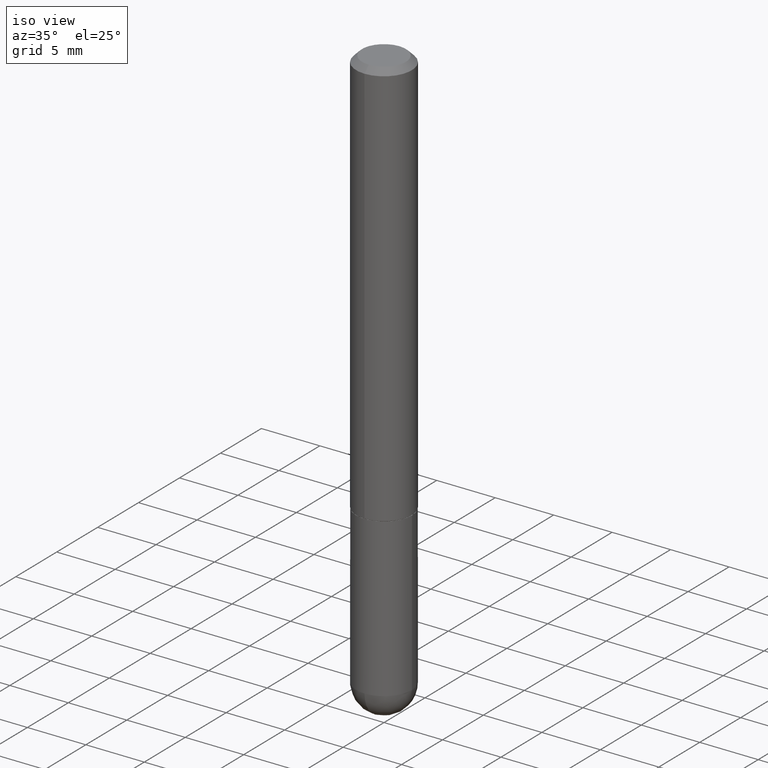
[diagram: clean part render]
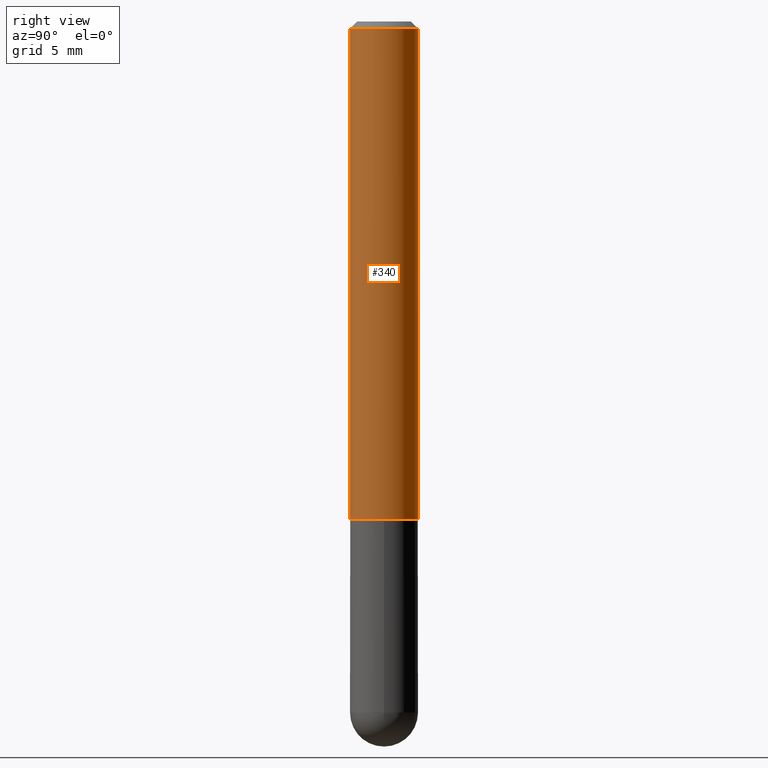
[diagram: tour spotlight — one face highlighted and labeled with its STEP entity id]
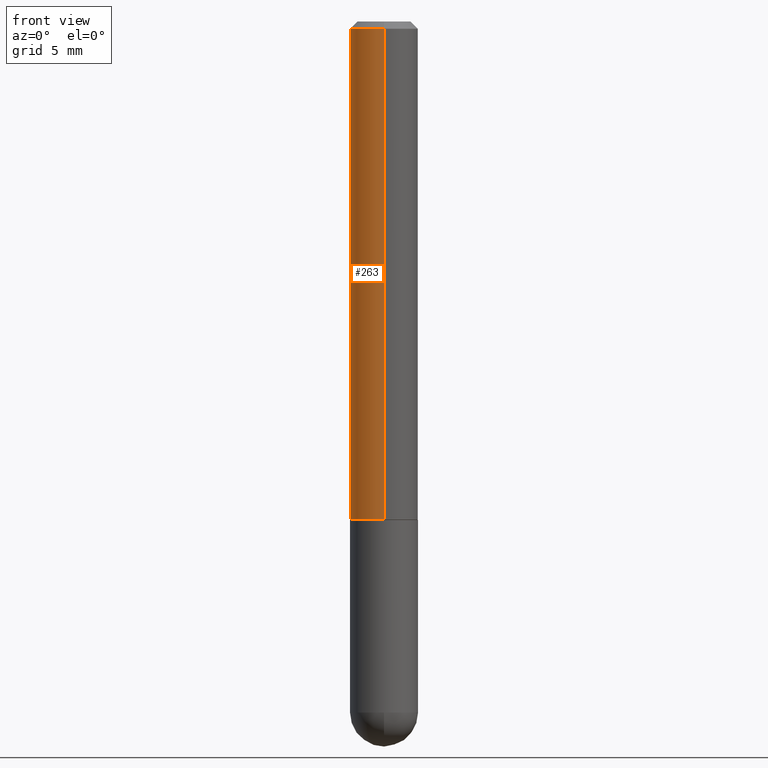
[diagram: tour spotlight — one face highlighted and labeled with its STEP entity id]
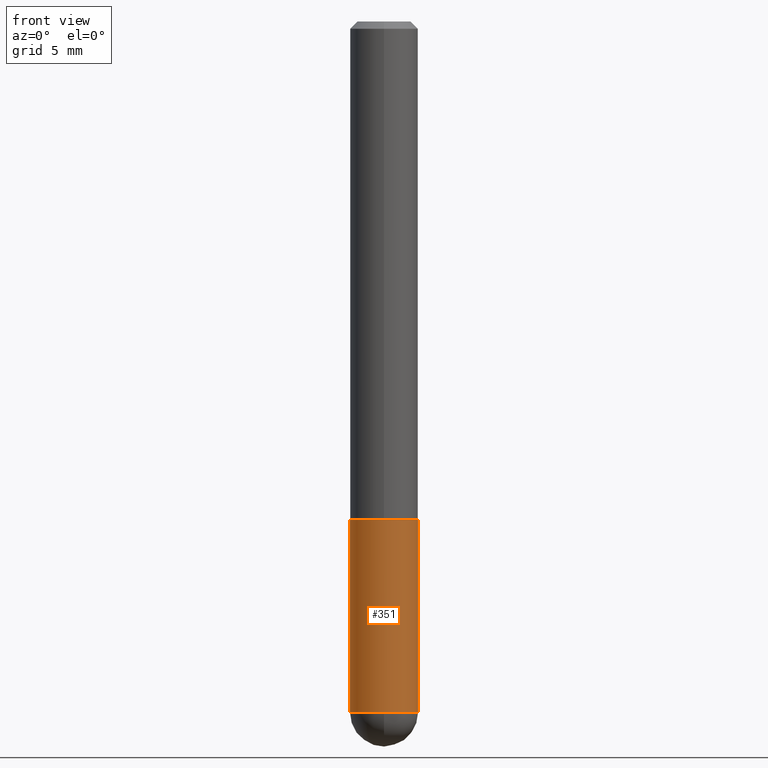
[diagram: tour spotlight — one face highlighted and labeled with its STEP entity id]
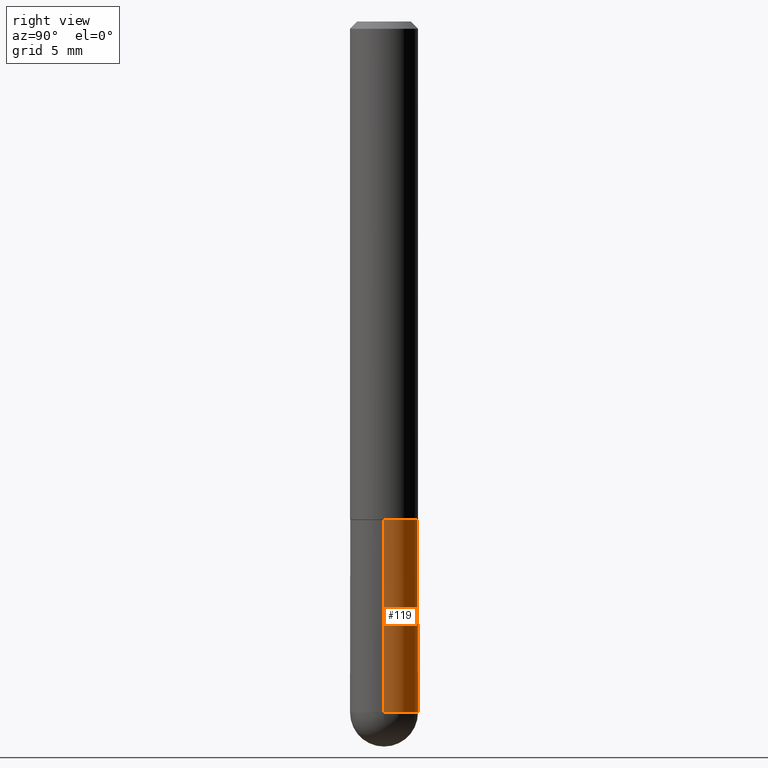
[diagram: tour spotlight — one face highlighted and labeled with its STEP entity id]
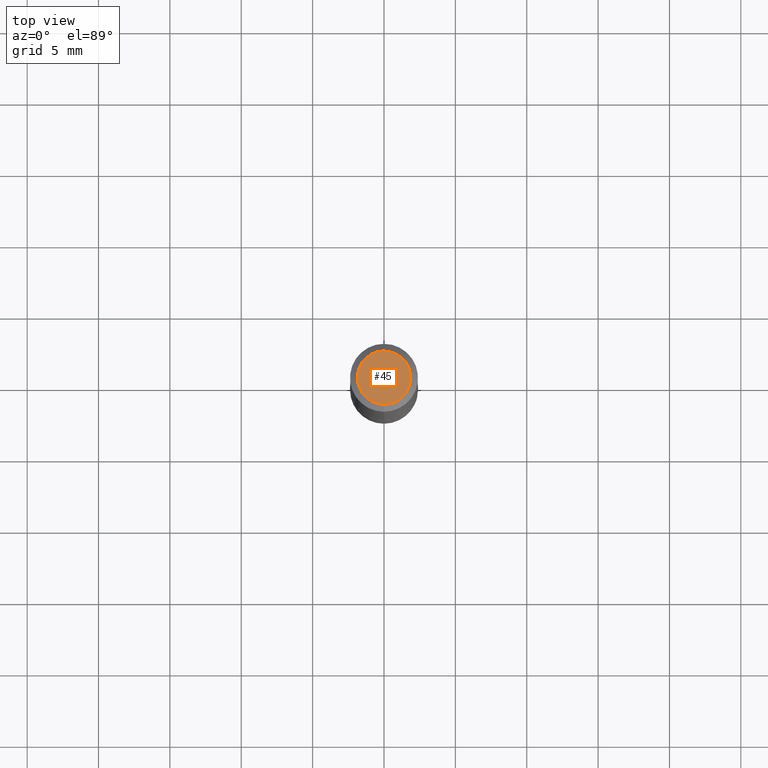
[diagram: tour spotlight — one face highlighted and labeled with its STEP entity id]
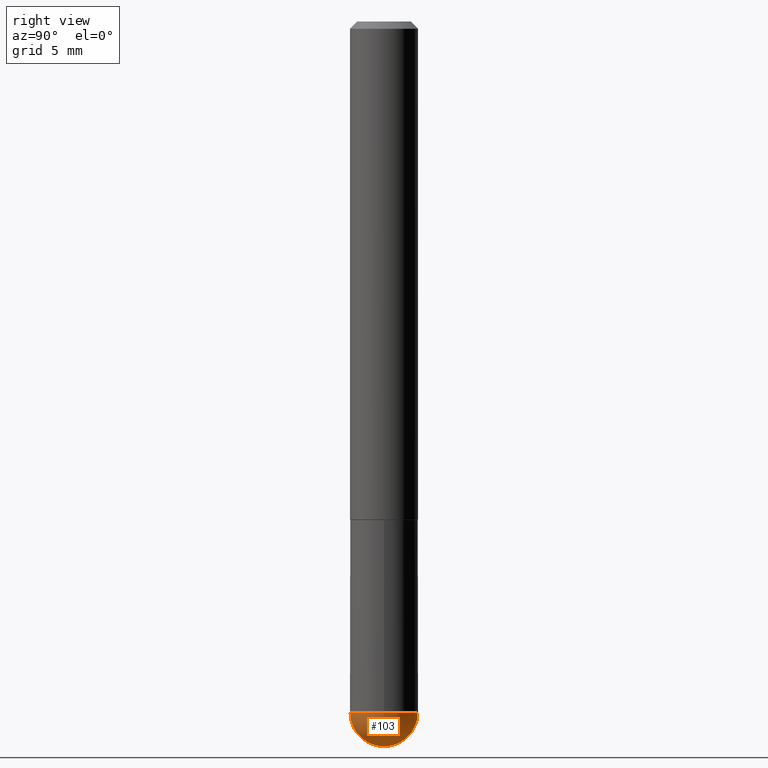
[diagram: tour spotlight — one face highlighted and labeled with its STEP entity id]
A machine part: a face-by-face anatomy tour. The part has 13 B-rep faces; the first image is the clean iso view, then the 6 largest visible faces are spotlighted one at a time (largest first), each with its STEP entity span.

Face 1 — right view, entity #340. In plain terms, the highlighted cylindrical surface (edge-blend (fillet) strip) has radius 2.3813 mm, axis along (-0, 0, 1).
Definition (entity closure, byte-faithful):
#14 = VERTEX_POINT ( 'NONE', #209 ) ;
#16 = VERTEX_POINT ( 'NONE', #364 ) ;
#18 = EDGE_CURVE ( 'NONE', #372, #16, #88, .T. ) ;
#23 = ORIENTED_EDGE ( 'NONE', *, *, #18, .T. ) ;
#25 = DIRECTION ( 'NONE',  ( -2.444815812930196646E-29, 3.492416462350287517E-15, 1.000000000000000000 ) ) ;
#28 = DIRECTION ( 'NONE',  ( -6.982962677686265922E-15, -1.000000000000000000, 3.492416462350287517E-15 ) ) ;
#43 = ORIENTED_EDGE ( 'NONE', *, *, #270, .F. ) ;
#55 = CYLINDRICAL_SURFACE ( 'NONE', #235, 0.09375000000000009714 ) ;
#88 = CIRCLE ( 'NONE', #397, 0.09375000000000018041 ) ;
#104 = CARTESIAN_POINT ( 'NONE',  ( -6.546527510330880958E-16, -0.09375000000000009714, 3.274140433453397875E-16 ) ) ;
#109 = EDGE_CURVE ( 'NONE', #14, #368, #375, .T. ) ;
#140 = EDGE_LOOP ( 'NONE', ( #23, #311, #395, #43 ) ) ;
#142 = VECTOR ( 'NONE', #25, 39.37007874015748143 ) ;
#177 = DIRECTION ( 'NONE',  ( -2.444815812930196646E-29, 3.492416462350287517E-15, 1.000000000000000000 ) ) ;
#188 = LINE ( 'NONE', #314, #142 ) ;
#191 = CARTESIAN_POINT ( 'NONE',  ( 0.000000000000000000, 0.000000000000000000, 0.000000000000000000 ) ) ;
#209 = CARTESIAN_POINT ( 'NONE',  ( -6.431716872910804923E-16, -0.09375000000000005551, -0.01999999999999968817 ) ) ;
#224 = FACE_OUTER_BOUND ( 'NONE', #140, .T. ) ;
#229 = AXIS2_PLACEMENT_3D ( 'NONE', #231, #356, #236 ) ;
#231 = CARTESIAN_POINT ( 'NONE',  ( 4.889631625860397600E-31, -6.984832924700581049E-17, -0.02000000000000001776 ) ) ;
#235 = AXIS2_PLACEMENT_3D ( 'NONE', #191, #246, #28 ) ;
#236 = DIRECTION ( 'NONE',  ( -6.982962677686266711E-15, -1.000000000000000000, 3.505871591869138487E-15 ) ) ;
#238 = VECTOR ( 'NONE', #177, 39.37007874015748143 ) ;
#246 = DIRECTION ( 'NONE',  ( -2.444815812930196646E-29, 3.492416462350287517E-15, 1.000000000000000000 ) ) ;
#256 = CARTESIAN_POINT ( 'NONE',  ( -6.546527510330551608E-16, -0.09375000000000498213, -1.373999999999999666 ) ) ;
#270 = EDGE_CURVE ( 'NONE', #372, #14, #387, .T. ) ;
#311 = ORIENTED_EDGE ( 'NONE', *, *, #328, .T. ) ;
#314 = CARTESIAN_POINT ( 'NONE',  ( 6.661338147750944173E-16, 0.09375000000000009714, -3.274140433453397875E-16 ) ) ;
#327 = DIRECTION ( 'NONE',  ( -6.982962677686265922E-15, -1.000000000000000000, 2.913971193241875244E-15 ) ) ;
#328 = EDGE_CURVE ( 'NONE', #16, #368, #188, .T. ) ;
#330 = DIRECTION ( 'NONE',  ( -2.444815812930196646E-29, 3.492416462350287517E-15, 1.000000000000000000 ) ) ;
#340 = ADVANCED_FACE ( 'NONE', ( #224 ), #55, .T. ) ;
#343 = CARTESIAN_POINT ( 'NONE',  ( 6.546527510330878985E-16, 0.09374999999999991673, -0.02000000000000034736 ) ) ;
#356 = DIRECTION ( 'NONE',  ( -2.444815812930196646E-29, 3.492416462350287517E-15, 1.000000000000000000 ) ) ;
#364 = CARTESIAN_POINT ( 'NONE',  ( 6.661338147751117722E-16, 0.09374999999999537870, -1.374000000000000110 ) ) ;
#368 = VERTEX_POINT ( 'NONE', #343 ) ;
#372 = VERTEX_POINT ( 'NONE', #256 ) ;
#375 = CIRCLE ( 'NONE', #229, 0.09374999999999998612 ) ;
#387 = LINE ( 'NONE', #104, #238 ) ;
#393 = CARTESIAN_POINT ( 'NONE',  ( 3.359176926966090099E-29, -4.798580219269294637E-15, -1.373999999999999888 ) ) ;
#395 = ORIENTED_EDGE ( 'NONE', *, *, #109, .F. ) ;
#397 = AXIS2_PLACEMENT_3D ( 'NONE', #393, #330, #327 ) ;

Face 2 — front view, entity #263. In plain terms, the highlighted cylindrical surface (edge-blend (fillet) strip) has radius 2.3813 mm, axis along (-0, 0, 1).
Definition (entity closure, byte-faithful):
#8 = CARTESIAN_POINT ( 'NONE',  ( 0.000000000000000000, 0.000000000000000000, 0.000000000000000000 ) ) ;
#14 = VERTEX_POINT ( 'NONE', #209 ) ;
#16 = VERTEX_POINT ( 'NONE', #364 ) ;
#25 = DIRECTION ( 'NONE',  ( -2.444815812930196646E-29, 3.492416462350287517E-15, 1.000000000000000000 ) ) ;
#26 = EDGE_CURVE ( 'NONE', #16, #372, #331, .T. ) ;
#31 = EDGE_CURVE ( 'NONE', #368, #14, #69, .T. ) ;
#40 = DIRECTION ( 'NONE',  ( -2.444815812930196646E-29, 3.492416462350287517E-15, 1.000000000000000000 ) ) ;
#69 = CIRCLE ( 'NONE', #365, 0.09374999999999998612 ) ;
#80 = EDGE_LOOP ( 'NONE', ( #136, #390, #276, #335 ) ) ;
#104 = CARTESIAN_POINT ( 'NONE',  ( -6.546527510330880958E-16, -0.09375000000000009714, 3.274140433453397875E-16 ) ) ;
#131 = DIRECTION ( 'NONE',  ( -2.444815812930196646E-29, 3.492416462350287517E-15, 1.000000000000000000 ) ) ;
#136 = ORIENTED_EDGE ( 'NONE', *, *, #328, .F. ) ;
#139 = CARTESIAN_POINT ( 'NONE',  ( 3.359176926966090099E-29, -4.798580219269294637E-15, -1.373999999999999888 ) ) ;
#142 = VECTOR ( 'NONE', #25, 39.37007874015748143 ) ;
#168 = FACE_OUTER_BOUND ( 'NONE', #80, .T. ) ;
#170 = DIRECTION ( 'NONE',  ( -6.982962677686266711E-15, -1.000000000000000000, 3.505871591869138487E-15 ) ) ;
#177 = DIRECTION ( 'NONE',  ( -2.444815812930196646E-29, 3.492416462350287517E-15, 1.000000000000000000 ) ) ;
#180 = DIRECTION ( 'NONE',  ( -2.444815812930196646E-29, 3.492416462350287517E-15, 1.000000000000000000 ) ) ;
#185 = AXIS2_PLACEMENT_3D ( 'NONE', #139, #40, #277 ) ;
#188 = LINE ( 'NONE', #314, #142 ) ;
#209 = CARTESIAN_POINT ( 'NONE',  ( -6.431716872910804923E-16, -0.09375000000000005551, -0.01999999999999968817 ) ) ;
#238 = VECTOR ( 'NONE', #177, 39.37007874015748143 ) ;
#256 = CARTESIAN_POINT ( 'NONE',  ( -6.546527510330551608E-16, -0.09375000000000498213, -1.373999999999999666 ) ) ;
#263 = ADVANCED_FACE ( 'NONE', ( #168 ), #297, .T. ) ;
#269 = DIRECTION ( 'NONE',  ( -6.982962677686265922E-15, -1.000000000000000000, 3.492416462350287517E-15 ) ) ;
#270 = EDGE_CURVE ( 'NONE', #372, #14, #387, .T. ) ;
#276 = ORIENTED_EDGE ( 'NONE', *, *, #270, .T. ) ;
#277 = DIRECTION ( 'NONE',  ( -6.982962677686265922E-15, -1.000000000000000000, 2.913971193241875244E-15 ) ) ;
#297 = CYLINDRICAL_SURFACE ( 'NONE', #353, 0.09375000000000009714 ) ;
#314 = CARTESIAN_POINT ( 'NONE',  ( 6.661338147750944173E-16, 0.09375000000000009714, -3.274140433453397875E-16 ) ) ;
#328 = EDGE_CURVE ( 'NONE', #16, #368, #188, .T. ) ;
#331 = CIRCLE ( 'NONE', #185, 0.09375000000000018041 ) ;
#335 = ORIENTED_EDGE ( 'NONE', *, *, #31, .F. ) ;
#343 = CARTESIAN_POINT ( 'NONE',  ( 6.546527510330878985E-16, 0.09374999999999991673, -0.02000000000000034736 ) ) ;
#353 = AXIS2_PLACEMENT_3D ( 'NONE', #8, #131, #269 ) ;
#364 = CARTESIAN_POINT ( 'NONE',  ( 6.661338147751117722E-16, 0.09374999999999537870, -1.374000000000000110 ) ) ;
#365 = AXIS2_PLACEMENT_3D ( 'NONE', #396, #180, #170 ) ;
#368 = VERTEX_POINT ( 'NONE', #343 ) ;
#372 = VERTEX_POINT ( 'NONE', #256 ) ;
#387 = LINE ( 'NONE', #104, #238 ) ;
#390 = ORIENTED_EDGE ( 'NONE', *, *, #26, .T. ) ;
#396 = CARTESIAN_POINT ( 'NONE',  ( 4.889631625860397600E-31, -6.984832924700581049E-17, -0.02000000000000001776 ) ) ;

Face 3 — front view, entity #351. In plain terms, the highlighted cylindrical surface (edge-blend (fillet) strip) has radius 2.3812 mm, axis along (-0, 0, 1).
Definition (entity closure, byte-faithful):
#4 = CARTESIAN_POINT ( 'NONE',  ( -6.661338147750496494E-16, -0.09375000000000702216, -1.906249999999999556 ) ) ;
#19 = FACE_OUTER_BOUND ( 'NONE', #284, .T. ) ;
#20 = VERTEX_POINT ( 'NONE', #213 ) ;
#37 = EDGE_CURVE ( 'NONE', #145, #20, #89, .T. ) ;
#53 = CARTESIAN_POINT ( 'NONE',  ( 0.09374999999999998612, -6.546527510330874055E-16, 4.571415727308689105E-30 ) ) ;
#62 = VECTOR ( 'NONE', #399, 39.37007874015748143 ) ;
#72 = VERTEX_POINT ( 'NONE', #255 ) ;
#81 = DIRECTION ( 'NONE',  ( -2.445468806185136877E-29, 3.491481338843145188E-15, 1.000000000000000000 ) ) ;
#89 = CIRCLE ( 'NONE', #293, 0.09374999999999998612 ) ;
#99 = AXIS2_PLACEMENT_3D ( 'NONE', #226, #346, #316 ) ;
#105 = VERTEX_POINT ( 'NONE', #128 ) ;
#115 = CYLINDRICAL_SURFACE ( 'NONE', #99, 0.09374999999999998612 ) ;
#122 = AXIS2_PLACEMENT_3D ( 'NONE', #200, #412, #355 ) ;
#128 = CARTESIAN_POINT ( 'NONE',  ( -0.09374999999999998612, -5.062077756764441261E-15, -1.906250000000000000 ) ) ;
#135 = DIRECTION ( 'NONE',  ( 1.000000000000000000, -6.982962677686263555E-15, 0.000000000000000000 ) ) ;
#137 = CARTESIAN_POINT ( 'NONE',  ( -0.09374999999999998612, 6.661338147750938256E-16, -4.611501647113973295E-30 ) ) ;
#145 = VERTEX_POINT ( 'NONE', #4 ) ;
#149 = LINE ( 'NONE', #137, #398 ) ;
#169 = ORIENTED_EDGE ( 'NONE', *, *, #347, .F. ) ;
#178 = ORIENTED_EDGE ( 'NONE', *, *, #37, .T. ) ;
#183 = ORIENTED_EDGE ( 'NONE', *, *, #318, .T. ) ;
#200 = CARTESIAN_POINT ( 'NONE',  ( 3.362519608504562260E-29, -4.800786840909324930E-15, -1.375000000000000000 ) ) ;
#213 = CARTESIAN_POINT ( 'NONE',  ( 0.09374999999999998612, -6.382864322572621901E-15, -1.906250000000000000 ) ) ;
#218 = DIRECTION ( 'NONE',  ( -2.445468806185136597E-29, 3.491481338843145583E-15, 1.000000000000000000 ) ) ;
#226 = CARTESIAN_POINT ( 'NONE',  ( 0.000000000000000000, 0.000000000000000000, 0.000000000000000000 ) ) ;
#230 = EDGE_CURVE ( 'NONE', #72, #251, #257, .T. ) ;
#251 = VERTEX_POINT ( 'NONE', #268 ) ;
#255 = CARTESIAN_POINT ( 'NONE',  ( -0.09375000000000001388, -5.062077756764441261E-15, -1.375000000000000000 ) ) ;
#257 = CIRCLE ( 'NONE', #122, 0.09375000000000001388 ) ;
#268 = CARTESIAN_POINT ( 'NONE',  ( 0.09375000000000001388, -5.455439591942412434E-15, -1.375000000000000000 ) ) ;
#284 = EDGE_LOOP ( 'NONE', ( #169, #402, #178, #183, #305 ) ) ;
#293 = AXIS2_PLACEMENT_3D ( 'NONE', #309, #301, #135 ) ;
#298 = EDGE_CURVE ( 'NONE', #105, #145, #389, .T. ) ;
#301 = DIRECTION ( 'NONE',  ( -2.445468806185136597E-29, 3.491481338843145583E-15, 1.000000000000000000 ) ) ;
#305 = ORIENTED_EDGE ( 'NONE', *, *, #230, .F. ) ;
#309 = CARTESIAN_POINT ( 'NONE',  ( 4.661674911790416638E-29, -6.655636302169745441E-15, -1.906250000000000000 ) ) ;
#316 = DIRECTION ( 'NONE',  ( 1.000000000000000000, -6.982962677686266711E-15, 4.876176775795935793E-29 ) ) ;
#317 = AXIS2_PLACEMENT_3D ( 'NONE', #341, #218, #366 ) ;
#318 = EDGE_CURVE ( 'NONE', #20, #251, #336, .T. ) ;
#336 = LINE ( 'NONE', #53, #62 ) ;
#341 = CARTESIAN_POINT ( 'NONE',  ( 4.661674911790416638E-29, -6.655636302169745441E-15, -1.906250000000000000 ) ) ;
#346 = DIRECTION ( 'NONE',  ( -2.445468806185136597E-29, 3.491481338843145583E-15, 1.000000000000000000 ) ) ;
#347 = EDGE_CURVE ( 'NONE', #105, #72, #149, .T. ) ;
#351 = ADVANCED_FACE ( 'NONE', ( #19 ), #115, .T. ) ;
#355 = DIRECTION ( 'NONE',  ( 1.000000000000000000, -6.982962677686261189E-15, 0.000000000000000000 ) ) ;
#366 = DIRECTION ( 'NONE',  ( 1.000000000000000000, -6.982962677686263555E-15, 0.000000000000000000 ) ) ;
#389 = CIRCLE ( 'NONE', #317, 0.09374999999999998612 ) ;
#398 = VECTOR ( 'NONE', #81, 39.37007874015748143 ) ;
#399 = DIRECTION ( 'NONE',  ( -2.445468806185136877E-29, 3.491481338843145188E-15, 1.000000000000000000 ) ) ;
#402 = ORIENTED_EDGE ( 'NONE', *, *, #298, .T. ) ;
#412 = DIRECTION ( 'NONE',  ( -2.445468806185136597E-29, 3.491481338843145583E-15, 1.000000000000000000 ) ) ;

Face 4 — right view, entity #119. In plain terms, the highlighted cylindrical surface (edge-blend (fillet) strip) has radius 2.3812 mm, axis along (-0, 0, 1).
Definition (entity closure, byte-faithful):
#17 = ORIENTED_EDGE ( 'NONE', *, *, #96, .T. ) ;
#20 = VERTEX_POINT ( 'NONE', #213 ) ;
#22 = AXIS2_PLACEMENT_3D ( 'NONE', #67, #325, #158 ) ;
#53 = CARTESIAN_POINT ( 'NONE',  ( 0.09374999999999998612, -6.546527510330874055E-16, 4.571415727308689105E-30 ) ) ;
#58 = CIRCLE ( 'NONE', #319, 0.09374999999999998612 ) ;
#62 = VECTOR ( 'NONE', #399, 39.37007874015748143 ) ;
#67 = CARTESIAN_POINT ( 'NONE',  ( 0.000000000000000000, 0.000000000000000000, 0.000000000000000000 ) ) ;
#72 = VERTEX_POINT ( 'NONE', #255 ) ;
#73 = ORIENTED_EDGE ( 'NONE', *, *, #347, .T. ) ;
#74 = ORIENTED_EDGE ( 'NONE', *, *, #386, .T. ) ;
#81 = DIRECTION ( 'NONE',  ( -2.445468806185136877E-29, 3.491481338843145188E-15, 1.000000000000000000 ) ) ;
#95 = CIRCLE ( 'NONE', #260, 0.09375000000000001388 ) ;
#96 = EDGE_CURVE ( 'NONE', #279, #105, #58, .T. ) ;
#102 = DIRECTION ( 'NONE',  ( -2.445468806185136597E-29, 3.491481338843145583E-15, 1.000000000000000000 ) ) ;
#105 = VERTEX_POINT ( 'NONE', #128 ) ;
#107 = DIRECTION ( 'NONE',  ( 1.000000000000000000, -6.982962677686263555E-15, 0.000000000000000000 ) ) ;
#119 = ADVANCED_FACE ( 'NONE', ( #296 ), #321, .T. ) ;
#128 = CARTESIAN_POINT ( 'NONE',  ( -0.09374999999999998612, -5.062077756764441261E-15, -1.906250000000000000 ) ) ;
#137 = CARTESIAN_POINT ( 'NONE',  ( -0.09374999999999998612, 6.661338147750938256E-16, -4.611501647113973295E-30 ) ) ;
#144 = EDGE_CURVE ( 'NONE', #251, #72, #95, .T. ) ;
#149 = LINE ( 'NONE', #137, #398 ) ;
#158 = DIRECTION ( 'NONE',  ( 1.000000000000000000, -6.982962677686266711E-15, 4.876176775795935793E-29 ) ) ;
#176 = CARTESIAN_POINT ( 'NONE',  ( 4.661674911790416638E-29, -6.655636302169745441E-15, -1.906250000000000000 ) ) ;
#213 = CARTESIAN_POINT ( 'NONE',  ( 0.09374999999999998612, -6.382864322572621901E-15, -1.906250000000000000 ) ) ;
#222 = CARTESIAN_POINT ( 'NONE',  ( 4.661674911790416638E-29, -6.655636302169745441E-15, -1.906250000000000000 ) ) ;
#248 = CIRCLE ( 'NONE', #379, 0.09374999999999998612 ) ;
#251 = VERTEX_POINT ( 'NONE', #268 ) ;
#255 = CARTESIAN_POINT ( 'NONE',  ( -0.09375000000000001388, -5.062077756764441261E-15, -1.375000000000000000 ) ) ;
#260 = AXIS2_PLACEMENT_3D ( 'NONE', #352, #102, #322 ) ;
#268 = CARTESIAN_POINT ( 'NONE',  ( 0.09375000000000001388, -5.455439591942412434E-15, -1.375000000000000000 ) ) ;
#279 = VERTEX_POINT ( 'NONE', #282 ) ;
#282 = CARTESIAN_POINT ( 'NONE',  ( 6.546527510331332580E-16, 0.09374999999999322764, -1.906250000000000222 ) ) ;
#288 = DIRECTION ( 'NONE',  ( 1.000000000000000000, -6.982962677686263555E-15, 0.000000000000000000 ) ) ;
#296 = FACE_OUTER_BOUND ( 'NONE', #308, .T. ) ;
#307 = DIRECTION ( 'NONE',  ( -2.445468806185136597E-29, 3.491481338843145583E-15, 1.000000000000000000 ) ) ;
#308 = EDGE_LOOP ( 'NONE', ( #17, #73, #369, #332, #74 ) ) ;
#318 = EDGE_CURVE ( 'NONE', #20, #251, #336, .T. ) ;
#319 = AXIS2_PLACEMENT_3D ( 'NONE', #176, #307, #107 ) ;
#321 = CYLINDRICAL_SURFACE ( 'NONE', #22, 0.09374999999999998612 ) ;
#322 = DIRECTION ( 'NONE',  ( 1.000000000000000000, -6.982962677686261189E-15, 0.000000000000000000 ) ) ;
#325 = DIRECTION ( 'NONE',  ( -2.445468806185136597E-29, 3.491481338843145583E-15, 1.000000000000000000 ) ) ;
#332 = ORIENTED_EDGE ( 'NONE', *, *, #318, .F. ) ;
#336 = LINE ( 'NONE', #53, #62 ) ;
#338 = DIRECTION ( 'NONE',  ( -2.445468806185136597E-29, 3.491481338843145583E-15, 1.000000000000000000 ) ) ;
#347 = EDGE_CURVE ( 'NONE', #105, #72, #149, .T. ) ;
#352 = CARTESIAN_POINT ( 'NONE',  ( 3.362519608504562260E-29, -4.800786840909324930E-15, -1.375000000000000000 ) ) ;
#369 = ORIENTED_EDGE ( 'NONE', *, *, #144, .F. ) ;
#379 = AXIS2_PLACEMENT_3D ( 'NONE', #222, #338, #288 ) ;
#386 = EDGE_CURVE ( 'NONE', #20, #279, #248, .T. ) ;
#398 = VECTOR ( 'NONE', #81, 39.37007874015748143 ) ;
#399 = DIRECTION ( 'NONE',  ( -2.445468806185136877E-29, 3.491481338843145188E-15, 1.000000000000000000 ) ) ;

Face 5 — top view, entity #45. In plain terms, the highlighted planar face has unit normal (0, -0, -1).
Definition (entity closure, byte-faithful):
#7 = CARTESIAN_POINT ( 'NONE',  ( 1.026711923411139363E-46, -1.466656753628731652E-32, -4.199547131448685395E-18 ) ) ;
#45 = ADVANCED_FACE ( 'NONE', ( #273 ), #108, .F. ) ;
#52 = AXIS2_PLACEMENT_3D ( 'NONE', #87, #405, #120 ) ;
#61 = EDGE_CURVE ( 'NONE', #326, #138, #234, .T. ) ;
#63 = DIRECTION ( 'NONE',  ( -6.982962677686265133E-15, -1.000000000000000000, 3.492416462350287911E-15 ) ) ;
#87 = CARTESIAN_POINT ( 'NONE',  ( 1.026711923411139363E-46, -1.466656753628731652E-32, -4.199547131448685395E-18 ) ) ;
#108 = PLANE ( 'NONE',  #211 ) ;
#120 = DIRECTION ( 'NONE',  ( -6.982962677686265133E-15, -1.000000000000000000, 3.492416462350287911E-15 ) ) ;
#138 = VERTEX_POINT ( 'NONE', #323 ) ;
#146 = DIRECTION ( 'NONE',  ( 2.444815812930196365E-29, -3.492416462350287517E-15, -1.000000000000000000 ) ) ;
#160 = CIRCLE ( 'NONE', #265, 0.07375000000000005163 ) ;
#211 = AXIS2_PLACEMENT_3D ( 'NONE', #242, #146, #287 ) ;
#214 = ORIENTED_EDGE ( 'NONE', *, *, #61, .T. ) ;
#216 = EDGE_CURVE ( 'NONE', #138, #326, #160, .T. ) ;
#234 = CIRCLE ( 'NONE', #52, 0.07375000000000005163 ) ;
#242 = CARTESIAN_POINT ( 'NONE',  ( 5.149934974793623868E-16, 0.07375000000000005163, -2.596654876640582300E-16 ) ) ;
#252 = ORIENTED_EDGE ( 'NONE', *, *, #216, .T. ) ;
#265 = AXIS2_PLACEMENT_3D ( 'NONE', #7, #384, #63 ) ;
#273 = FACE_OUTER_BOUND ( 'NONE', #334, .T. ) ;
#287 = DIRECTION ( 'NONE',  ( 6.982962677686265922E-15, 1.000000000000000000, -3.492416462350287517E-15 ) ) ;
#323 = CARTESIAN_POINT ( 'NONE',  ( -5.745667073133655554E-16, -0.07375000000000005163, 2.533661669668852000E-16 ) ) ;
#326 = VERTEX_POINT ( 'NONE', #333 ) ;
#333 = CARTESIAN_POINT ( 'NONE',  ( 5.848231242562251920E-16, 0.07375000000000005163, -2.617652612297826062E-16 ) ) ;
#334 = EDGE_LOOP ( 'NONE', ( #214, #252 ) ) ;
#384 = DIRECTION ( 'NONE',  ( -2.444815812930196646E-29, 3.492416462350287517E-15, 1.000000000000000000 ) ) ;
#405 = DIRECTION ( 'NONE',  ( -2.444815812930196646E-29, 3.492416462350287517E-15, 1.000000000000000000 ) ) ;

Face 6 — right view, entity #103. In plain terms, the highlighted spherical surface has radius 2.3813 mm.
Definition (entity closure, byte-faithful):
#4 = CARTESIAN_POINT ( 'NONE',  ( -6.661338147750496494E-16, -0.09375000000000702216, -1.906249999999999556 ) ) ;
#11 = AXIS2_PLACEMENT_3D ( 'NONE', #134, #391, #44 ) ;
#13 = EDGE_LOOP ( 'NONE', ( #306, #49, #116, #245 ) ) ;
#20 = VERTEX_POINT ( 'NONE', #213 ) ;
#36 = DIRECTION ( 'NONE',  ( -1.000000000000000000, 7.105427357601001070E-15, -4.926315508542082329E-29 ) ) ;
#37 = EDGE_CURVE ( 'NONE', #145, #20, #89, .T. ) ;
#44 = DIRECTION ( 'NONE',  ( 6.982962677686265133E-15, 1.000000000000000000, 0.000000000000000000 ) ) ;
#49 = ORIENTED_EDGE ( 'NONE', *, *, #93, .T. ) ;
#65 = CARTESIAN_POINT ( 'NONE',  ( 4.563826426436916486E-29, -7.451404513955337857E-15, -2.000000000000000444 ) ) ;
#71 = SPHERICAL_SURFACE ( 'NONE', #357, 0.09375000000000026368 ) ;
#75 = FACE_OUTER_BOUND ( 'NONE', #13, .T. ) ;
#78 = AXIS2_PLACEMENT_3D ( 'NONE', #202, #36, #130 ) ;
#89 = CIRCLE ( 'NONE', #293, 0.09374999999999998612 ) ;
#93 = EDGE_CURVE ( 'NONE', #243, #279, #133, .T. ) ;
#97 = CARTESIAN_POINT ( 'NONE',  ( 4.330555133876530390E-29, -7.129818670309794948E-15, -1.906250000000000000 ) ) ;
#103 = ADVANCED_FACE ( 'NONE', ( #75 ), #71, .T. ) ;
#116 = ORIENTED_EDGE ( 'NONE', *, *, #386, .F. ) ;
#130 = DIRECTION ( 'NONE',  ( -7.105427357601001070E-15, -1.000000000000000000, 0.000000000000000000 ) ) ;
#133 = CIRCLE ( 'NONE', #11, 0.09375000000000026368 ) ;
#134 = CARTESIAN_POINT ( 'NONE',  ( 4.330555133876530390E-29, -7.129818670309794948E-15, -1.906250000000000000 ) ) ;
#135 = DIRECTION ( 'NONE',  ( 1.000000000000000000, -6.982962677686263555E-15, 0.000000000000000000 ) ) ;
#145 = VERTEX_POINT ( 'NONE', #4 ) ;
#202 = CARTESIAN_POINT ( 'NONE',  ( 4.330555133876530390E-29, -7.129818670309794948E-15, -1.906250000000000000 ) ) ;
#213 = CARTESIAN_POINT ( 'NONE',  ( 0.09374999999999998612, -6.382864322572621901E-15, -1.906250000000000000 ) ) ;
#222 = CARTESIAN_POINT ( 'NONE',  ( 4.661674911790416638E-29, -6.655636302169745441E-15, -1.906250000000000000 ) ) ;
#243 = VERTEX_POINT ( 'NONE', #65 ) ;
#245 = ORIENTED_EDGE ( 'NONE', *, *, #37, .F. ) ;
#247 = EDGE_CURVE ( 'NONE', #243, #145, #342, .T. ) ;
#248 = CIRCLE ( 'NONE', #379, 0.09374999999999998612 ) ;
#264 = DIRECTION ( 'NONE',  ( -1.000000000000000000, 6.982962677686265133E-15, -4.883557194083112901E-29 ) ) ;
#279 = VERTEX_POINT ( 'NONE', #282 ) ;
#282 = CARTESIAN_POINT ( 'NONE',  ( 6.546527510331332580E-16, 0.09374999999999322764, -1.906250000000000222 ) ) ;
#288 = DIRECTION ( 'NONE',  ( 1.000000000000000000, -6.982962677686263555E-15, 0.000000000000000000 ) ) ;
#293 = AXIS2_PLACEMENT_3D ( 'NONE', #309, #301, #135 ) ;
#301 = DIRECTION ( 'NONE',  ( -2.445468806185136597E-29, 3.491481338843145583E-15, 1.000000000000000000 ) ) ;
#306 = ORIENTED_EDGE ( 'NONE', *, *, #247, .F. ) ;
#309 = CARTESIAN_POINT ( 'NONE',  ( 4.661674911790416638E-29, -6.655636302169745441E-15, -1.906250000000000000 ) ) ;
#338 = DIRECTION ( 'NONE',  ( -2.445468806185136597E-29, 3.491481338843145583E-15, 1.000000000000000000 ) ) ;
#342 = CIRCLE ( 'NONE', #78, 0.09375000000000026368 ) ;
#357 = AXIS2_PLACEMENT_3D ( 'NONE', #97, #264, #381 ) ;
#379 = AXIS2_PLACEMENT_3D ( 'NONE', #222, #338, #288 ) ;
#381 = DIRECTION ( 'NONE',  ( 6.982962677686265133E-15, 1.000000000000000000, -2.913971193241872483E-15 ) ) ;
#386 = EDGE_CURVE ( 'NONE', #20, #279, #248, .T. ) ;
#391 = DIRECTION ( 'NONE',  ( 1.000000000000000000, -6.982962677686265922E-15, 4.883557194083112340E-29 ) ) ;